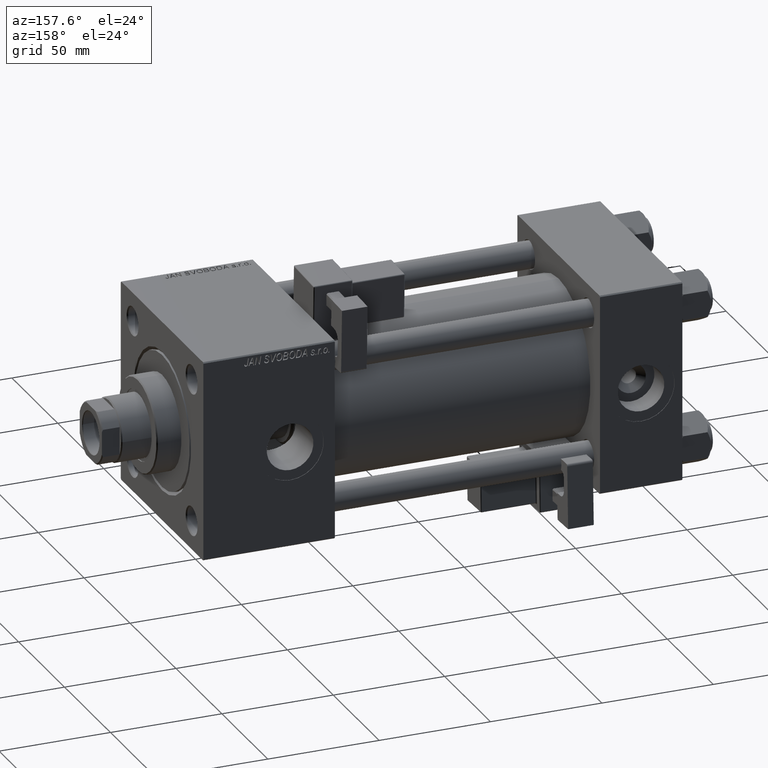
[diagram: clean part render]
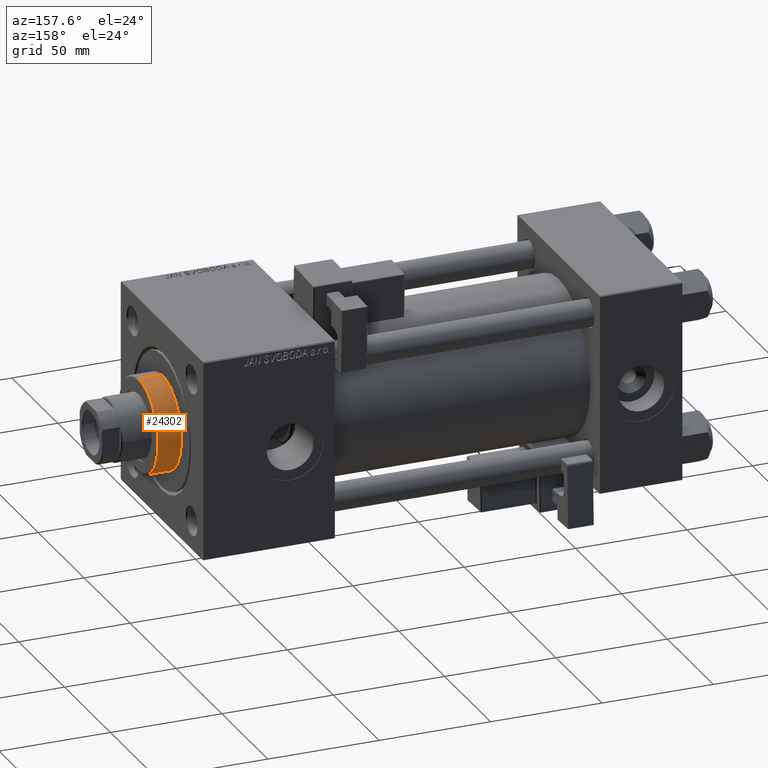
[diagram: same view with one face highlighted and labeled with its STEP entity id]
A machine part, auxiliary view. The second image highlights one B-rep face of the part: STEP entity #24302.
In plain terms, the highlighted cylindrical surface (partial cylindrical patch) has radius 21 mm, axis along (-1, -0, -0).
Its self-contained STEP definition (entity closure, byte-faithful):
#143 = VECTOR ( 'NONE', #20645, 1000.000000000000000 ) ;
#1942 = LINE ( 'NONE', #2212, #15148 ) ;
#2212 = CARTESIAN_POINT ( 'NONE',  ( 21.00000000000000000, 2.571758278209441661E-15, 39.69999999999999574 ) ) ;
#6448 = VERTEX_POINT ( 'NONE', #35619 ) ;
#6815 = CYLINDRICAL_SURFACE ( 'NONE', #44571, 21.00000000000000000 ) ;
#7637 = CIRCLE ( 'NONE', #40483, 21.00000000000000000 ) ;
#9782 = DIRECTION ( 'NONE',  ( 0.000000000000000000, 0.000000000000000000, -1.000000000000000000 ) ) ;
#10469 = ORIENTED_EDGE ( 'NONE', *, *, #23629, .T. ) ;
#12131 = EDGE_LOOP ( 'NONE', ( #25922, #10469, #48403, #52129 ) ) ;
#15148 = VECTOR ( 'NONE', #17915, 1000.000000000000000 ) ;
#16734 = CARTESIAN_POINT ( 'NONE',  ( 0.000000000000000000, 0.000000000000000000, 39.69999999999999574 ) ) ;
#17915 = DIRECTION ( 'NONE',  ( -0.000000000000000000, -0.000000000000000000, -1.000000000000000000 ) ) ;
#18127 = CARTESIAN_POINT ( 'NONE',  ( -21.00000000000000000, 0.000000000000000000, 28.69999999999999929 ) ) ;
#18480 = FACE_OUTER_BOUND ( 'NONE', #12131, .T. ) ;
#20645 = DIRECTION ( 'NONE',  ( -0.000000000000000000, -0.000000000000000000, -1.000000000000000000 ) ) ;
#22771 = CARTESIAN_POINT ( 'NONE',  ( 0.000000000000000000, 0.000000000000000000, 39.19999999999999574 ) ) ;
#23629 = EDGE_CURVE ( 'NONE', #32928, #32533, #1942, .T. ) ;
#23936 = CARTESIAN_POINT ( 'NONE',  ( 21.00000000000000000, 2.571758278209441661E-15, 39.19999999999999574 ) ) ;
#24302 = ADVANCED_FACE ( 'NONE', ( #18480 ), #6815, .T. ) ;
#25922 = ORIENTED_EDGE ( 'NONE', *, *, #34288, .T. ) ;
#26614 = AXIS2_PLACEMENT_3D ( 'NONE', #51837, #36451, #40776 ) ;
#27906 = DIRECTION ( 'NONE',  ( -1.000000000000000000, 0.000000000000000000, 0.000000000000000000 ) ) ;
#29169 = DIRECTION ( 'NONE',  ( -0.000000000000000000, -0.000000000000000000, -1.000000000000000000 ) ) ;
#32533 = VERTEX_POINT ( 'NONE', #38375 ) ;
#32634 = EDGE_CURVE ( 'NONE', #32533, #48128, #39571, .T. ) ;
#32928 = VERTEX_POINT ( 'NONE', #23936 ) ;
#34288 = EDGE_CURVE ( 'NONE', #6448, #32928, #7637, .T. ) ;
#35619 = CARTESIAN_POINT ( 'NONE',  ( -21.00000000000000000, 0.000000000000000000, 39.19999999999999574 ) ) ;
#36451 = DIRECTION ( 'NONE',  ( 0.000000000000000000, 0.000000000000000000, 1.000000000000000000 ) ) ;
#36637 = CARTESIAN_POINT ( 'NONE',  ( -21.00000000000000000, 0.000000000000000000, 39.69999999999999574 ) ) ;
#37700 = LINE ( 'NONE', #36637, #143 ) ;
#38375 = CARTESIAN_POINT ( 'NONE',  ( 21.00000000000000000, 2.571758278209441661E-15, 28.69999999999999929 ) ) ;
#39023 = DIRECTION ( 'NONE',  ( 1.000000000000000000, 0.000000000000000000, 0.000000000000000000 ) ) ;
#39571 = CIRCLE ( 'NONE', #26614, 21.00000000000000000 ) ;
#40483 = AXIS2_PLACEMENT_3D ( 'NONE', #22771, #9782, #39023 ) ;
#40776 = DIRECTION ( 'NONE',  ( 1.000000000000000000, 0.000000000000000000, 0.000000000000000000 ) ) ;
#44571 = AXIS2_PLACEMENT_3D ( 'NONE', #16734, #29169, #27906 ) ;
#48128 = VERTEX_POINT ( 'NONE', #18127 ) ;
#48403 = ORIENTED_EDGE ( 'NONE', *, *, #32634, .T. ) ;
#48910 = EDGE_CURVE ( 'NONE', #6448, #48128, #37700, .T. ) ;
#51837 = CARTESIAN_POINT ( 'NONE',  ( 0.000000000000000000, 0.000000000000000000, 28.69999999999999929 ) ) ;
#52129 = ORIENTED_EDGE ( 'NONE', *, *, #48910, .F. ) ;